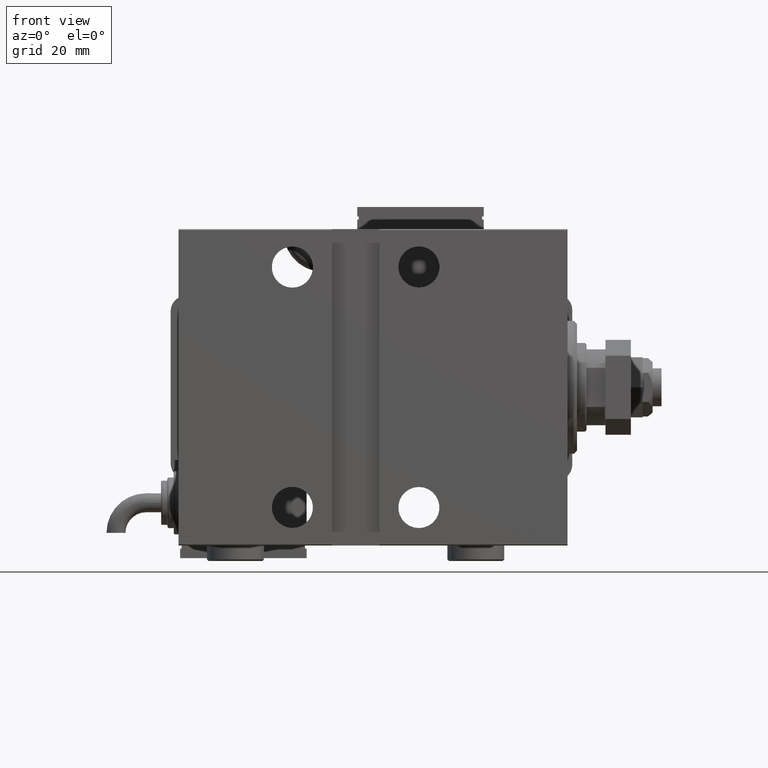
[diagram: clean part render]
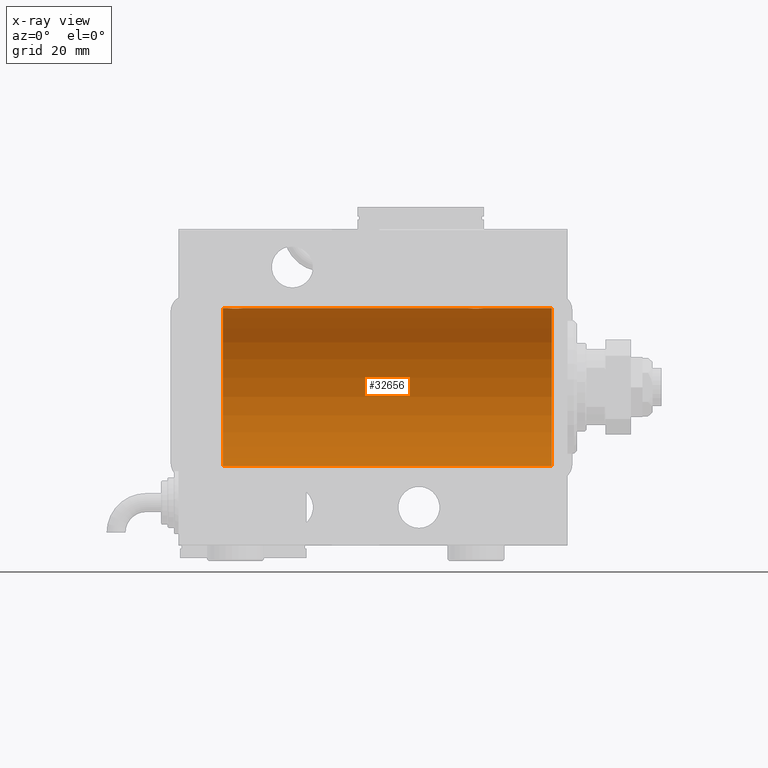
[diagram: x-ray — body ghosted, one internal face saturated and labeled with its STEP entity id]
A machine part, front view, then the same camera in x-ray: the body is ghosted and one INTERNAL B-rep face — a face not visible from any outside direction — is saturated and labeled: STEP entity #32656.
In plain terms, the highlighted cylindrical surface (partial cylindrical patch) has radius 25 mm, axis along (1, 0, -0).
Its self-contained STEP definition (entity closure, byte-faithful):
#55 = CARTESIAN_POINT ( 'NONE',  ( 30.52256774340189693, -1.989585286700245037, 24.92087098724766747 ) ) ;
#89 = CARTESIAN_POINT ( 'NONE',  ( 26.50000000000000355, -1.940558383798427991E-23, 25.00000000000000000 ) ) ;
#522 = CARTESIAN_POINT ( 'NONE',  ( 102.7523974898045083, -1.106703319666891838, 24.97594585958023217 ) ) ;
#663 = CARTESIAN_POINT ( 'NONE',  ( 29.32596570039460104, -2.484007091859765204, 24.87630842367763506 ) ) ;
#1174 = LINE ( 'NONE', #38251, #6549 ) ;
#3615 = CARTESIAN_POINT ( 'NONE',  ( 109.0000000000000000, 0.000000000000000000, 0.000000000000000000 ) ) ;
#4790 = CARTESIAN_POINT ( 'NONE',  ( 103.8896320349113722, -2.245863995402913371, 24.89899750494197050 ) ) ;
#4826 = VECTOR ( 'NONE', #33325, 1000.000000000000000 ) ;
#5089 = CARTESIAN_POINT ( 'NONE',  ( 104.8329350482193973, -2.499872792855093451, 24.87469871246082320 ) ) ;
#5367 = CARTESIAN_POINT ( 'NONE',  ( 109.0000000000000000, 0.000000000000000000, 25.00000000000000000 ) ) ;
#6291 = AXIS2_PLACEMENT_3D ( 'NONE', #3615, #7850, #18149 ) ;
#6549 = VECTOR ( 'NONE', #24555, 1000.000000000000000 ) ;
#7824 = LINE ( 'NONE', #16933, #20303 ) ;
#7850 = DIRECTION ( 'NONE',  ( -1.000000000000000000, -0.000000000000000000, -0.000000000000000000 ) ) ;
#9340 = CARTESIAN_POINT ( 'NONE',  ( 106.1072384583841028, -2.247417070759907709, 24.89885693081946272 ) ) ;
#9381 = VERTEX_POINT ( 'NONE', #20622 ) ;
#9635 = CARTESIAN_POINT ( 'NONE',  ( 107.5000000000000000, 2.971051067387116602E-15, 25.00000000000000000 ) ) ;
#9687 = EDGE_CURVE ( 'NONE', #9381, #58195, #18723, .T. ) ;
#9778 = CARTESIAN_POINT ( 'NONE',  ( 30.88185954148645962, -1.653834020452937814, 24.94550385189585029 ) ) ;
#10491 = EDGE_CURVE ( 'NONE', #13027, #29748, #57214, .T. ) ;
#11700 = CARTESIAN_POINT ( 'NONE',  ( 31.50000000000000000, -3.359922002512890391E-15, 25.00000000000000000 ) ) ;
#12397 = CARTESIAN_POINT ( 'NONE',  ( 5.000000000000004441, 0.000000000000000000, 25.00000000000000000 ) ) ;
#12988 = CARTESIAN_POINT ( 'NONE',  ( 106.5225677434019502, -1.989585286700258138, 24.92087098724766747 ) ) ;
#13027 = VERTEX_POINT ( 'NONE', #33958 ) ;
#13121 = CARTESIAN_POINT ( 'NONE',  ( 26.82988709719076681, -1.252049606094339795, 24.96900299967627390 ) ) ;
#13283 = CARTESIAN_POINT ( 'NONE',  ( 106.9853803371709375, -1.528152964861310803, 24.95362559291378091 ) ) ;
#13420 = CARTESIAN_POINT ( 'NONE',  ( 31.16827641493957302, -1.255214705003183440, 24.96884293994578385 ) ) ;
#13725 = CARTESIAN_POINT ( 'NONE',  ( 28.67052319885732103, -2.483544361357271857, 24.87635491893501438 ) ) ;
#13913 = ORIENTED_EDGE ( 'NONE', *, *, #43855, .F. ) ;
#14027 = CARTESIAN_POINT ( 'NONE',  ( 31.24606379094067066, -1.109818057797417046, 24.97580694515541921 ) ) ;
#14186 = CARTESIAN_POINT ( 'NONE',  ( 102.8298870971907775, -1.252049606094350453, 24.96900299967627390 ) ) ;
#14324 = CARTESIAN_POINT ( 'NONE',  ( 30.98538033717094464, -1.528152964861312801, 24.95362559291378801 ) ) ;
#16159 = AXIS2_PLACEMENT_3D ( 'NONE', #52736, #25052, #27894 ) ;
#16375 = ORIENTED_EDGE ( 'NONE', *, *, #39720, .T. ) ;
#16479 = CARTESIAN_POINT ( 'NONE',  ( 27.01250184165601809, -1.525407911884367085, 24.95379469572361941 ) ) ;
#16933 = CARTESIAN_POINT ( 'NONE',  ( 109.0000000000000000, 0.000000000000000000, 25.00000000000000000 ) ) ;
#17679 = CARTESIAN_POINT ( 'NONE',  ( 26.50000000000000355, -1.940558383798427991E-23, 25.00000000000000000 ) ) ;
#17985 = CARTESIAN_POINT ( 'NONE',  ( 29.16323589638543723, -2.500125740978195843, 24.87467329022545570 ) ) ;
#18135 = CARTESIAN_POINT ( 'NONE',  ( 103.4746381775692043, -1.987446652080271159, 24.92104239223420592 ) ) ;
#18149 = DIRECTION ( 'NONE',  ( 0.000000000000000000, 0.000000000000000000, 1.000000000000000000 ) ) ;
#18435 = CARTESIAN_POINT ( 'NONE',  ( 102.4999999999999432, -0.1631750940176235343, 25.00000000000000355 ) ) ;
#18723 = CIRCLE ( 'NONE', #40117, 25.00000000000000000 ) ;
#18744 = CARTESIAN_POINT ( 'NONE',  ( 107.2460637909406813, -1.109818057797417490, 24.97580694515541921 ) ) ;
#19037 = CARTESIAN_POINT ( 'NONE',  ( 104.6705231988572962, -2.483544361357281627, 24.87635491893501793 ) ) ;
#19073 = CIRCLE ( 'NONE', #16159, 25.00000000000000000 ) ;
#19174 = CARTESIAN_POINT ( 'NONE',  ( 28.83293504821940090, -2.499872792855082793, 24.87469871246082320 ) ) ;
#19916 = LINE ( 'NONE', #56442, #4826 ) ;
#20303 = VECTOR ( 'NONE', #35492, 1000.000000000000000 ) ;
#20622 = CARTESIAN_POINT ( 'NONE',  ( 5.000000000000004441, 3.061616997868383043E-15, -25.00000000000000000 ) ) ;
#21039 = CARTESIAN_POINT ( 'NONE',  ( 26.62784030591392792, -0.8058335233485480753, 24.98746277938383287 ) ) ;
#21485 = CARTESIAN_POINT ( 'NONE',  ( 109.0000000000000000, 3.061616997868383043E-15, -25.00000000000000000 ) ) ;
#21903 = ORIENTED_EDGE ( 'NONE', *, *, #9687, .T. ) ;
#22308 = CARTESIAN_POINT ( 'NONE',  ( 107.5000000000000000, 2.971051067387116602E-15, 25.00000000000000000 ) ) ;
#22545 = CARTESIAN_POINT ( 'NONE',  ( 28.35095609830903740, -2.419770561643910689, 24.88263927071751169 ) ) ;
#23007 = CARTESIAN_POINT ( 'NONE',  ( 107.4334935523974792, -0.6588655613945869627, 24.99312727339970053 ) ) ;
#23607 = CARTESIAN_POINT ( 'NONE',  ( 105.1632358963854159, -2.500125740978206057, 24.87467329022545570 ) ) ;
#24049 = VECTOR ( 'NONE', #51124, 1000.000000000000000 ) ;
#24555 = DIRECTION ( 'NONE',  ( -1.000000000000000000, -0.000000000000000000, -0.000000000000000000 ) ) ;
#25052 = DIRECTION ( 'NONE',  ( -1.000000000000000000, 0.000000000000000000, 0.000000000000000000 ) ) ;
#25117 = DIRECTION ( 'NONE',  ( -1.000000000000000000, 0.000000000000000000, 0.000000000000000000 ) ) ;
#25898 = CARTESIAN_POINT ( 'NONE',  ( 27.47463817756919369, -1.987446652080264720, 24.92104239223420592 ) ) ;
#26686 = FACE_OUTER_BOUND ( 'NONE', #59577, .T. ) ;
#26914 = ORIENTED_EDGE ( 'NONE', *, *, #48235, .F. ) ;
#26973 = CARTESIAN_POINT ( 'NONE',  ( 102.5000000000000000, -1.940203396391078535E-23, 25.00000000000000000 ) ) ;
#27575 = CARTESIAN_POINT ( 'NONE',  ( 103.1158761721352732, -1.651251241585110163, 24.94567559498348430 ) ) ;
#27871 = CARTESIAN_POINT ( 'NONE',  ( 103.7461680457549846, -2.169003991399879983, 24.90589728951138326 ) ) ;
#27894 = DIRECTION ( 'NONE',  ( 0.000000000000000000, 0.000000000000000000, 1.000000000000000000 ) ) ;
#28160 = CARTESIAN_POINT ( 'NONE',  ( 102.5798509077906999, -0.6480119923854288366, 24.99212088949390775 ) ) ;
#29748 = VERTEX_POINT ( 'NONE', #22308 ) ;
#29973 = B_SPLINE_CURVE_WITH_KNOTS ( 'NONE', 3,
 ( #17679, #36252, #35337, #44185, #21039, #54803, #13121, #16479, #44480, #35039, #25898, #51422, #51121, #59678, #22545, #13725, #19174, #17985, #663, #41708, #59968, #37142, #56008, #55, #46280, #9778, #14324, #13420, #14027, #37734, #56304, #32882 ),
 .UNSPECIFIED., .F., .F.,
 ( 4, 2, 2, 2, 2, 2, 2, 2, 2, 2, 2, 2, 2, 2, 2, 4 ),
 ( 0.007821024441662275534, 0.008309723826317880202, 0.008798423210973486605, 0.009287122595629093008, 0.009775821980284697676, 0.01026452136494030234, 0.01075322074959590875, 0.01124192013425151515, 0.01173061951890711982, 0.01221931890356272449, 0.01270801828821833089, 0.01319671767287393729, 0.01368541705752954196, 0.01417411644218514663, 0.01466281582684075303, 0.01564021459615196410 ),
 .UNSPECIFIED. ) ;
#29977 = CARTESIAN_POINT ( 'NONE',  ( 5.000000000000004441, 0.000000000000000000, 0.000000000000000000 ) ) ;
#31544 = CARTESIAN_POINT ( 'NONE',  ( 107.5000000000000426, -0.3305063766663758895, 25.00000000000000355 ) ) ;
#31583 = ORIENTED_EDGE ( 'NONE', *, *, #37557, .F. ) ;
#31842 = CARTESIAN_POINT ( 'NONE',  ( 104.1921165759419381, -2.371528299825759856, 24.88734287464370709 ) ) ;
#32656 = ADVANCED_FACE ( 'NONE', ( #26686 ), #36712, .F. ) ;
#32741 = CARTESIAN_POINT ( 'NONE',  ( 105.8043566091630083, -2.372734907014184991, 24.88722742718433523 ) ) ;
#32882 = CARTESIAN_POINT ( 'NONE',  ( 31.50000000000000000, -3.359922002512890391E-15, 25.00000000000000000 ) ) ;
#33325 = DIRECTION ( 'NONE',  ( -1.000000000000000000, -0.000000000000000000, -0.000000000000000000 ) ) ;
#33958 = CARTESIAN_POINT ( 'NONE',  ( 102.5000000000000000, -1.940203396391078535E-23, 25.00000000000000000 ) ) ;
#35039 = CARTESIAN_POINT ( 'NONE',  ( 27.34616663850662377, -1.881857718844717642, 24.92933960374833902 ) ) ;
#35337 = CARTESIAN_POINT ( 'NONE',  ( 26.51582159942343608, -0.3254210271412225630, 24.99840249400844883 ) ) ;
#35492 = DIRECTION ( 'NONE',  ( -1.000000000000000000, -0.000000000000000000, -0.000000000000000000 ) ) ;
#36252 = CARTESIAN_POINT ( 'NONE',  ( 26.50000000000000711, -0.1631750940176214526, 25.00000000000000711 ) ) ;
#36408 = CARTESIAN_POINT ( 'NONE',  ( 106.8818595414864632, -1.653834020452947362, 24.94550385189584318 ) ) ;
#36700 = CARTESIAN_POINT ( 'NONE',  ( 106.2508402392405458, -2.170728182476731938, 24.90574631553725027 ) ) ;
#36712 = CYLINDRICAL_SURFACE ( 'NONE', #6291, 25.00000000000000000 ) ;
#36889 = VERTEX_POINT ( 'NONE', #89 ) ;
#37002 = CARTESIAN_POINT ( 'NONE',  ( 102.6278403059139350, -0.8058335233485532934, 24.98746277938383287 ) ) ;
#37142 = CARTESIAN_POINT ( 'NONE',  ( 30.10723845838410284, -2.247417070759897495, 24.89885693081946272 ) ) ;
#37441 = CARTESIAN_POINT ( 'NONE',  ( 109.0000000000000000, 0.000000000000000000, 25.00000000000000000 ) ) ;
#37557 = EDGE_CURVE ( 'NONE', #53166, #40139, #19073, .T. ) ;
#37734 = CARTESIAN_POINT ( 'NONE',  ( 31.43349355239747567, -0.6588655613945881839, 24.99312727339970053 ) ) ;
#38251 = CARTESIAN_POINT ( 'NONE',  ( 109.0000000000000000, 3.061616997868383043E-15, -25.00000000000000000 ) ) ;
#39720 = EDGE_CURVE ( 'NONE', #53166, #9381, #1174, .T. ) ;
#40117 = AXIS2_PLACEMENT_3D ( 'NONE', #29977, #25117, #48241 ) ;
#40139 = VERTEX_POINT ( 'NONE', #5367 ) ;
#40189 = VERTEX_POINT ( 'NONE', #11700 ) ;
#40583 = EDGE_CURVE ( 'NONE', #36889, #40189, #29973, .T. ) ;
#40971 = CARTESIAN_POINT ( 'NONE',  ( 105.6456066614863119, -2.420689345803769044, 24.88254961038873958 ) ) ;
#41275 = CARTESIAN_POINT ( 'NONE',  ( 103.0125018416559897, -1.525407911884377965, 24.95379469572361941 ) ) ;
#41708 = CARTESIAN_POINT ( 'NONE',  ( 29.64560666148631896, -2.420689345803761050, 24.88254961038873958 ) ) ;
#42174 = CARTESIAN_POINT ( 'NONE',  ( 102.5158215994234183, -0.3254210271412264488, 24.99840249400844883 ) ) ;
#43855 = EDGE_CURVE ( 'NONE', #13027, #40189, #51721, .T. ) ;
#44185 = CARTESIAN_POINT ( 'NONE',  ( 26.57985090779070347, -0.6480119923854229524, 24.99212088949390420 ) ) ;
#44480 = CARTESIAN_POINT ( 'NONE',  ( 27.11587617213528745, -1.651251241585102836, 24.94567559498349141 ) ) ;
#44910 = ORIENTED_EDGE ( 'NONE', *, *, #10491, .T. ) ;
#46143 = CARTESIAN_POINT ( 'NONE',  ( 107.1682764149395553, -1.255214705003179221, 24.96884293994577675 ) ) ;
#46280 = CARTESIAN_POINT ( 'NONE',  ( 30.65121133559112820, -1.884161199660616459, 24.92916496727982434 ) ) ;
#46731 = CARTESIAN_POINT ( 'NONE',  ( 104.3509560983090267, -2.419770561643919127, 24.88263927071750814 ) ) ;
#48040 = EDGE_CURVE ( 'NONE', #40139, #29748, #7824, .T. ) ;
#48235 = EDGE_CURVE ( 'NONE', #36889, #58195, #19916, .T. ) ;
#48241 = DIRECTION ( 'NONE',  ( 0.000000000000000000, 0.000000000000000000, 1.000000000000000000 ) ) ;
#51121 = CARTESIAN_POINT ( 'NONE',  ( 27.88963203491136156, -2.245863995402901381, 24.89899750494197050 ) ) ;
#51124 = DIRECTION ( 'NONE',  ( -1.000000000000000000, -0.000000000000000000, -0.000000000000000000 ) ) ;
#51422 = CARTESIAN_POINT ( 'NONE',  ( 27.74616804575498108, -2.169003991399871989, 24.90589728951138326 ) ) ;
#51721 = LINE ( 'NONE', #37441, #24049 ) ;
#52736 = CARTESIAN_POINT ( 'NONE',  ( 109.0000000000000000, 0.000000000000000000, 0.000000000000000000 ) ) ;
#53166 = VERTEX_POINT ( 'NONE', #21485 ) ;
#54056 = ORIENTED_EDGE ( 'NONE', *, *, #48040, .F. ) ;
#54803 = CARTESIAN_POINT ( 'NONE',  ( 26.75239748980449761, -1.106703319666885399, 24.97594585958023572 ) ) ;
#55262 = CARTESIAN_POINT ( 'NONE',  ( 106.6512113355911566, -1.884161199660627561, 24.92916496727982789 ) ) ;
#55563 = CARTESIAN_POINT ( 'NONE',  ( 105.3259657003945904, -2.484007091859774086, 24.87630842367763151 ) ) ;
#56008 = CARTESIAN_POINT ( 'NONE',  ( 30.25084023924055998, -2.170728182476720391, 24.90574631553725027 ) ) ;
#56270 = ORIENTED_EDGE ( 'NONE', *, *, #40583, .T. ) ;
#56304 = CARTESIAN_POINT ( 'NONE',  ( 31.49999999999998579, -0.3305063766663721148, 25.00000000000000000 ) ) ;
#56442 = CARTESIAN_POINT ( 'NONE',  ( 109.0000000000000000, 0.000000000000000000, 25.00000000000000000 ) ) ;
#57214 = B_SPLINE_CURVE_WITH_KNOTS ( 'NONE', 3,
 ( #26973, #18435, #42174, #28160, #37002, #522, #14186, #41275, #27575, #59834, #18135, #27871, #4790, #31842, #46731, #19037, #5089, #23607, #55563, #40971, #32741, #9340, #36700, #12988, #55262, #36408, #13283, #46143, #18744, #23007, #31544, #9635 ),
 .UNSPECIFIED., .F., .F.,
 ( 4, 2, 2, 2, 2, 2, 2, 2, 2, 2, 2, 2, 2, 2, 2, 4 ),
 ( 0.007821024441662341453, 0.008309723826317951326, 0.008798423210973559463, 0.009287122595629169336, 0.009775821980284777474, 0.01026452136494038735, 0.01075322074959599548, 0.01124192013425160536, 0.01173061951890721349, 0.01221931890356282337, 0.01270801828821843324, 0.01319671767287404138, 0.01368541705752964951, 0.01417411644218525939, 0.01466281582684086926, 0.01564021459615210288 ),
 .UNSPECIFIED. ) ;
#58195 = VERTEX_POINT ( 'NONE', #12397 ) ;
#59577 = EDGE_LOOP ( 'NONE', ( #31583, #16375, #21903, #26914, #56270, #13913, #44910, #54056 ) ) ;
#59678 = CARTESIAN_POINT ( 'NONE',  ( 28.19211657594193809, -2.371528299825749198, 24.88734287464370709 ) ) ;
#59834 = CARTESIAN_POINT ( 'NONE',  ( 103.3461666385066025, -1.881857718844725857, 24.92933960374833546 ) ) ;
#59968 = CARTESIAN_POINT ( 'NONE',  ( 29.80435660916301899, -2.372734907014175665, 24.88722742718433878 ) ) ;